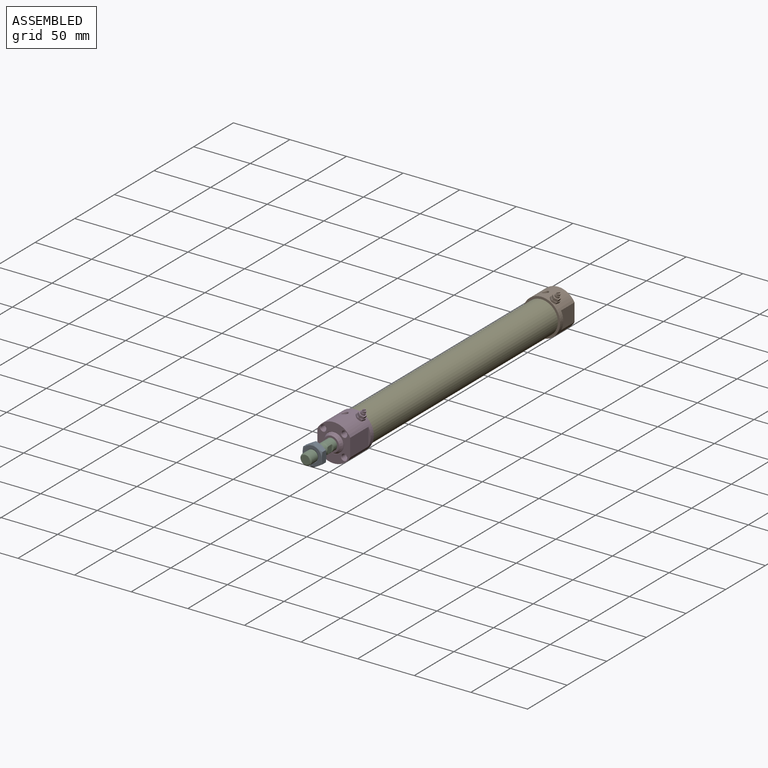
[diagram: assembled view]
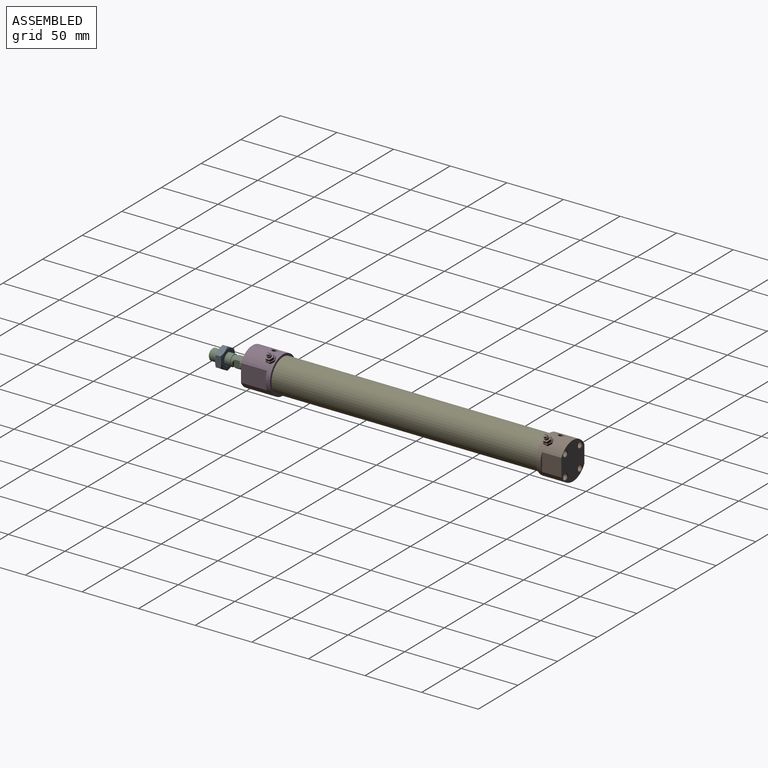
[diagram: assembled view, second angle]
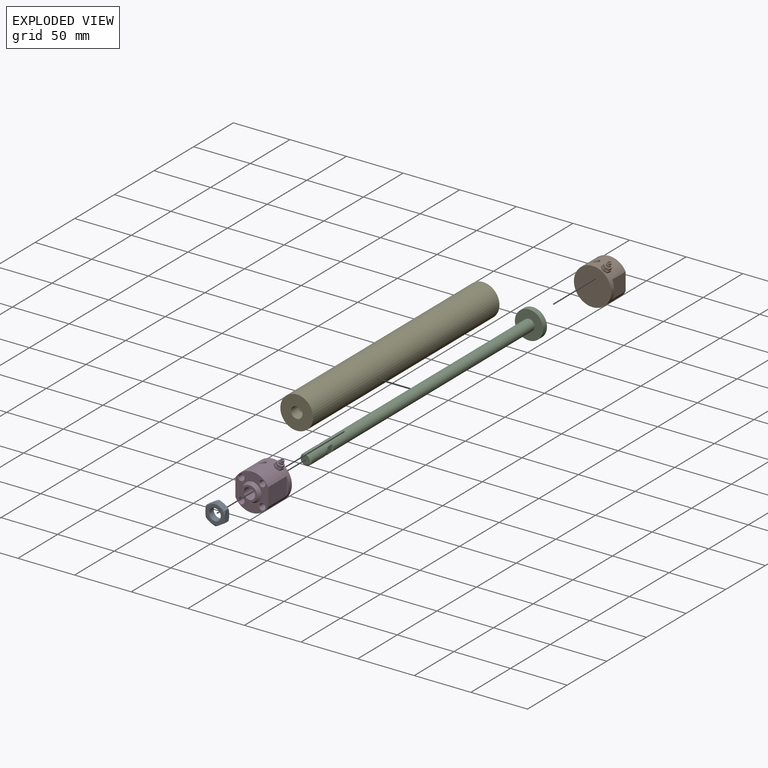
[diagram: exploded view]
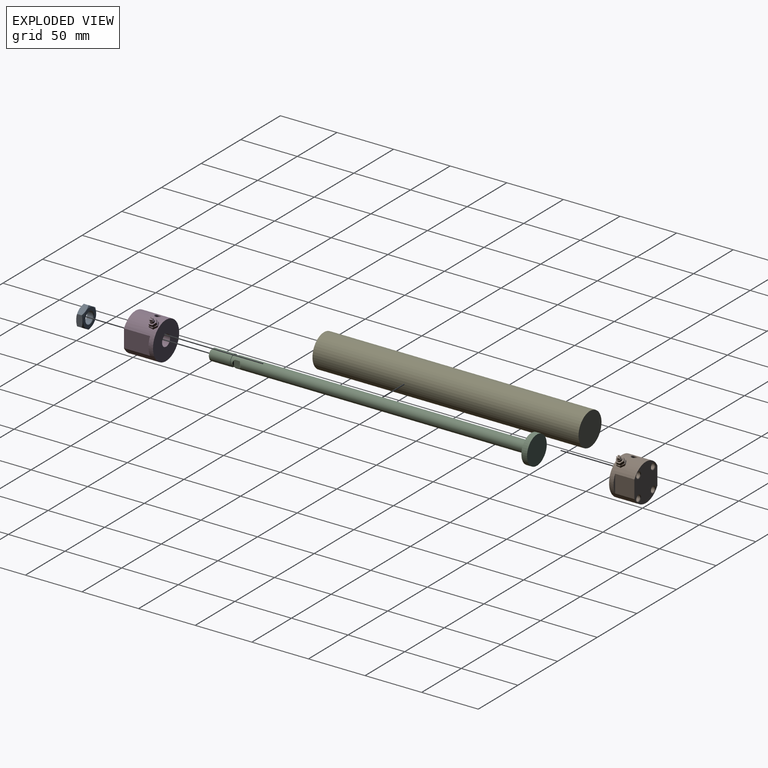
[diagram: exploded view, second angle]
ASSEMBLY  parts=5 mates=3
PART A: 13 faces, bbox 19.6x6x19.6 mm
  f0: plane 8.5x5.72mm, normal (0.5,0,-0.87), area 50.9mm2, adj f1,f5,f11,f12
  f1: plane 9.82x5.72mm, normal (1,0,0), area 50.9mm2, adj f0,f2,f11,f12
  f2: plane 8.51x5.72mm, normal (0.5,0,0.87), area 50.9mm2, adj f1,f3,f11,f12
  f3: plane 8.5x5.72mm, normal (-0.5,0,0.87), area 50.9mm2, adj f2,f4,f11,f12
  f4: plane 9.82x5.72mm, normal (-1,0,0), area 50.9mm2, adj f3,f5,f11,f12
  f5: plane 8.51x5.72mm, normal (-0.5,0,-0.87), area 50.9mm2, adj f0,f4,f11,f12
  f6: plane 16.5x16.5mm, normal (0,1,0), area 126mm2, adj f9,f12
  f7: plane 16.5x16.5mm, normal (0,-1,0), area 118.8mm2, adj f10,f11
  f8: cylinder r=5mm len=10mm, axis (0,1,0), area 163.7mm2, adj f9,f10
  f9: cone r=5.29mm half-angle=30deg, axis (0,1,0), area 18.7mm2, adj f6,f8
  f10: cone r=5mm half-angle=60deg, axis (0,-1,0), area 19mm2, adj f7,f8
  f11: cone r=8.25mm half-angle=60deg, axis (0,1,0), area 42.1mm2, adj f0,f1,f2,f3,f4,f5,f7
  f12: cone r=9.81mm half-angle=60deg, axis (0,-1,0), area 42.1mm2, adj f0,f1,f2,f3,f4,f5,f6
PART B: 48 faces, bbox 33x21x38.1 mm
  f0: plane 2.86x1.43mm, normal (0.5,0,0.87), area 2.4mm2, adj f26,f28
  f1: plane 4x3.46mm, normal (0.5,0,0.87), area 4.5mm2, adj f25,f26
  f2: plane 6.9x5.23mm, normal (0.5,0,0.87), area 18.4mm2, adj f19,f20,f21,f22,f23,f24,f25
  f3: plane 7.91x6.46mm, normal (0.5,0,0.87), area 10.6mm2, adj f13,f14,f15,f16,f17,f18,f19,f20
  f4: plane 8.1x7.02mm, normal (0.5,0,0.87), area 10mm2, adj f12,f13,f14,f15,f16,f17,f18
  f5: cylinder r=16.5mm len=33mm, axis (0,-1,0), area 1540.8mm2, adj f6,f7,f8,f9,f10,f11,f12,f47
  f6: plane 33x29mm, normal (0,1,0), area 707.1mm2, adj f5,f9,f11,f39,f40,f41,f42
  f7: plane 33x33mm, normal (0,-1,0), area 855.3mm2, adj f5
  f8: plane 15.75x2mm, normal (0,1,0), area 21.3mm2, adj f5,f9
  f9: plane 17x15.75mm, normal (-1,0,0), area 267.7mm2, adj f5,f6,f8
  f10: plane 15.75x2mm, normal (0,1,0), area 21.3mm2, adj f5,f11
  f11: plane 17x15.75mm, normal (1,0,0), area 267.7mm2, adj f5,f6,f10
  f12: cylinder r=4.05mm len=8.1mm, axis (0.5,0,0.87), area 7.6mm2, adj f4,f5
  f13: plane 4.18x3.51mm, normal (-0.31,0.93,0.18), area 7.6mm2, adj f3,f4,f14,f18
  f14: plane 3.95x1.95mm, normal (-0.86,0.15,0.49), area 7.6mm2, adj f3,f4,f13,f15
  f15: plane 3.65x3.2mm, normal (-0.54,-0.78,0.31), area 7.6mm2, adj f3,f4,f14,f16
  f16: plane 4.18x3.51mm, normal (0.31,-0.93,-0.18), area 7.6mm2, adj f3,f4,f15,f17
  f17: plane 3.95x1.95mm, normal (0.86,-0.15,-0.49), area 7.6mm2, adj f3,f4,f16,f18
  f18: plane 3.65x3.2mm, normal (0.54,0.78,-0.31), area 7.6mm2, adj f3,f4,f13,f17
  f19: plane 3.45x2.11mm, normal (0.87,0.02,-0.5), area 8.3mm2, adj f2,f3,f20,f24
  f20: plane 3.82x3.59mm, normal (0.42,0.88,-0.24), area 8.3mm2, adj f2,f3,f19,f21
  f21: plane 3.76x3.56mm, normal (-0.45,0.86,0.26), area 8.3mm2, adj f2,f3,f20,f22
  f22: plane 3.45x2.11mm, normal (-0.87,-0.02,0.5), area 8.3mm2, adj f2,f3,f21,f23
  f23: plane 3.82x3.59mm, normal (-0.42,-0.88,0.24), area 8.3mm2, adj f2,f3,f22,f24
  f24: plane 3.76x3.56mm, normal (0.45,-0.86,-0.26), area 8.3mm2, adj f2,f3,f19,f23
  f25: cylinder r=2mm len=4.34mm, axis (-0.5,0,-0.87), area 22mm2, adj f1,f2
  f26: cylinder r=1.6mm len=3.77mm, axis (-0.5,0,-0.87), area 18.1mm2, adj f0,f1,f27,f28,f29,f30
  f27: plane 2.86x1.43mm, normal (0.5,0,0.87), area 2.4mm2, adj f26,f29
  f28: plane 2.86x1.4mm, normal (0.81,-0.34,-0.47), area 3mm2, adj f0,f26,f30
  f29: plane 2.86x1.4mm, normal (-0.81,0.34,0.47), area 3mm2, adj f26,f27,f30
  f30: plane 3.2x1.71mm, normal (0.5,0,0.87), area 3.1mm2, adj f26,f28,f29
  f31: cylinder r=2.5mm len=7.6mm, axis (0,1,0), area 119.4mm2, adj f32,f39
  f32: plane 5x5mm, normal (0,1,0), area 19.6mm2, adj f31
  f33: cylinder r=2.5mm len=7.6mm, axis (0,1,0), area 119.4mm2, adj f34,f42
  f34: plane 5x5mm, normal (0,1,0), area 19.6mm2, adj f33
  f35: cylinder r=2.5mm len=7.6mm, axis (0,1,0), area 119.4mm2, adj f36,f41
  f36: plane 5x5mm, normal (0,1,0), area 19.6mm2, adj f35
  f37: cylinder r=2.5mm len=7.6mm, axis (0,1,0), area 119.4mm2, adj f38,f40
  f38: plane 5x5mm, normal (0,1,0), area 19.6mm2, adj f37
  f39: cone r=2.5mm half-angle=45deg, axis (0,1,0), area 9.6mm2, adj f6,f31
  f40: cone r=2.5mm half-angle=45deg, axis (0,1,0), area 9.6mm2, adj f6,f37
  f41: cone r=2.5mm half-angle=45deg, axis (0,1,0), area 9.6mm2, adj f6,f35
  f42: cone r=2.5mm half-angle=45deg, axis (0,1,0), area 9.6mm2, adj f6,f33
  f43: cylinder r=2.5mm len=10.04mm, axis (-0.17,0,0.98), area 146.2mm2, adj f46,f47
  f44: plane 4.2x4.14mm, normal (-0.17,0,0.98), area 13.9mm2, adj f45
  f45: cylinder r=2.1mm len=4.55mm, axis (-0.17,0,0.98), area 31.7mm2, adj f44,f46
  f46: plane 5x4.92mm, normal (-0.17,0,0.98), area 5.8mm2, adj f43,f45
  f47: bspline ~5.76x5.7mm, area 9.9mm2, adj f5,f43
PART C: 17 faces, bbox 25x287.1x25 mm
  f0: cone r=4.55mm half-angle=30deg, axis (0,1,0), area 8.6mm2, adj f1,f6,f12,f15
  f1: cylinder r=5mm len=259.22mm, axis (0,1,0), area 8074.4mm2, adj f0,f2,f5,f11,f12,f14,f15
  f2: plane 24.9x24.9mm, normal (0,-1,0), area 408.4mm2, adj f1,f3
  f3: cylinder r=12.45mm len=24.9mm, axis (0,1,0), area 391.1mm2, adj f2,f4
  f4: plane 24.9x24.9mm, normal (0,1,0), area 487mm2, adj f3
  f5: cone r=4.55mm half-angle=30deg, axis (0,1,0), area 8.6mm2, adj f1,f6,f12,f15
  f6: cylinder r=4.55mm len=9.1mm, axis (0,1,0), area 68.2mm2, adj f0,f5,f7,f13,f16
  f7: plane 10x10mm, normal (0,1,0), area 13.5mm2, adj f6,f9
  f8: plane 8x8mm, normal (0,-1,0), area 50.3mm2, adj f10
  f9: cylinder r=5mm len=18.5mm, axis (0,1,0), area 581.2mm2, adj f7,f10
  f10: cone r=4mm half-angle=45deg, axis (0,1,0), area 40mm2, adj f8,f9
  f11: plane 6x1mm, normal (0.71,-0.71,0), area 5.8mm2, adj f1,f12
  f12: plane 6.06x5.56mm, normal (1,0,0), area 32.4mm2, adj f0,f1,f5,f11,f13
  f13: plane 4.34x0.55mm, normal (0.71,0.71,0), area 2.3mm2, adj f6,f12
  f14: plane 6x1mm, normal (-0.71,-0.71,0), area 5.8mm2, adj f1,f15
  f15: plane 6.06x5.56mm, normal (-1,0,0), area 32.4mm2, adj f0,f1,f5,f14,f16
  f16: plane 4.34x0.55mm, normal (-0.71,0.71,0), area 2.3mm2, adj f6,f15
PART D: 52 faces, bbox 33x30x38.1 mm
  f0: plane 2.86x1.43mm, normal (0.5,0,0.87), area 2.4mm2, adj f26,f28
  f1: plane 4x3.46mm, normal (0.5,0,0.87), area 4.5mm2, adj f25,f26
  f2: plane 6.9x5.23mm, normal (0.5,0,0.87), area 18.4mm2, adj f19,f20,f21,f22,f23,f24,f25
  f3: plane 7.91x6.46mm, normal (0.5,0,0.87), area 10.6mm2, adj f13,f14,f15,f16,f17,f18,f19,f20
  f4: plane 8.1x7.02mm, normal (0.5,0,0.87), area 10mm2, adj f12,f13,f14,f15,f16,f17,f18
  f5: cylinder r=16.5mm len=33mm, axis (0,1,0), area 1965.8mm2, adj f6,f7,f8,f9,f10,f11,f12,f51
  f6: plane 33x29mm, normal (0,-1,0), area 466.6mm2, adj f5,f9,f11,f31,f41,f42,f43,f44
  f7: plane 33x33mm, normal (0,1,0), area 775.2mm2, adj f5,f47
  f8: plane 15.75x2mm, normal (0,-1,0), area 21.3mm2, adj f5,f9
  f9: plane 23x15.75mm, normal (1,0,0), area 362.2mm2, adj f5,f6,f8
  f10: plane 15.75x2mm, normal (0,-1,0), area 21.3mm2, adj f5,f11
  f11: plane 23x15.75mm, normal (-1,0,0), area 362.2mm2, adj f5,f6,f10
  f12: cylinder r=4.05mm len=8.1mm, axis (0.5,0,0.87), area 7.6mm2, adj f4,f5
  f13: plane 4.18x3.51mm, normal (0.31,-0.93,-0.18), area 7.6mm2, adj f3,f4,f14,f18
  f14: plane 3.95x1.95mm, normal (0.86,-0.15,-0.49), area 7.6mm2, adj f3,f4,f13,f15
  f15: plane 3.65x3.2mm, normal (0.54,0.78,-0.31), area 7.6mm2, adj f3,f4,f14,f16
  f16: plane 4.18x3.51mm, normal (-0.31,0.93,0.18), area 7.6mm2, adj f3,f4,f15,f17
  f17: plane 3.95x1.95mm, normal (-0.86,0.15,0.49), area 7.6mm2, adj f3,f4,f16,f18
  f18: plane 3.65x3.2mm, normal (-0.54,-0.78,0.31), area 7.6mm2, adj f3,f4,f13,f17
  f19: plane 3.45x2.11mm, normal (-0.87,-0.02,0.5), area 8.3mm2, adj f2,f3,f20,f24
  f20: plane 3.82x3.59mm, normal (-0.42,-0.88,0.24), area 8.3mm2, adj f2,f3,f19,f21
  f21: plane 3.76x3.56mm, normal (0.45,-0.86,-0.26), area 8.3mm2, adj f2,f3,f20,f22
  f22: plane 3.45x2.11mm, normal (0.87,0.02,-0.5), area 8.3mm2, adj f2,f3,f21,f23
  f23: plane 3.82x3.59mm, normal (0.42,0.88,-0.24), area 8.3mm2, adj f2,f3,f22,f24
  f24: plane 3.76x3.56mm, normal (-0.45,0.86,0.26), area 8.3mm2, adj f2,f3,f19,f23
  f25: cylinder r=2mm len=4.34mm, axis (-0.5,0,-0.87), area 22mm2, adj f1,f2
  f26: cylinder r=1.6mm len=3.77mm, axis (-0.5,0,-0.87), area 18.1mm2, adj f0,f1,f27,f28,f29,f30
  f27: plane 2.86x1.43mm, normal (0.5,0,0.87), area 2.4mm2, adj f26,f29
  f28: plane 2.86x1.4mm, normal (-0.81,0.34,0.47), area 3mm2, adj f0,f26,f30
  f29: plane 2.86x1.4mm, normal (0.81,-0.34,-0.47), area 3mm2, adj f26,f27,f30
  f30: plane 3.2x1.71mm, normal (0.5,0,0.87), area 3.1mm2, adj f26,f28,f29
  f31: cone r=8.5mm half-angle=45deg, axis (0,-1,0), area 19.2mm2, adj f6,f32
  f32: cylinder r=8.5mm len=17mm, axis (0,1,0), area 13.4mm2, adj f31,f45
  f33: cylinder r=2.5mm len=7.6mm, axis (0,-1,0), area 119.4mm2, adj f34,f41
  f34: plane 5x5mm, normal (0,-1,0), area 19.6mm2, adj f33
  f35: cylinder r=2.5mm len=7.6mm, axis (0,-1,0), area 119.4mm2, adj f36,f44
  f36: plane 5x5mm, normal (0,-1,0), area 19.6mm2, adj f35
  f37: cylinder r=2.5mm len=7.6mm, axis (0,-1,0), area 119.4mm2, adj f38,f43
  f38: plane 5x5mm, normal (0,-1,0), area 19.6mm2, adj f37
  f39: cylinder r=2.5mm len=7.6mm, axis (0,-1,0), area 119.4mm2, adj f40,f42
  f40: plane 5x5mm, normal (0,-1,0), area 19.6mm2, adj f39
  f41: cone r=2.5mm half-angle=45deg, axis (0,-1,0), area 9.6mm2, adj f6,f33
  f42: cone r=2.5mm half-angle=45deg, axis (0,-1,0), area 9.6mm2, adj f6,f39
  f43: cone r=2.5mm half-angle=45deg, axis (0,-1,0), area 9.6mm2, adj f6,f37
  f44: cone r=2.5mm half-angle=45deg, axis (0,-1,0), area 9.6mm2, adj f6,f35
  f45: cone r=8.5mm half-angle=30deg, axis (0,1,0), area 166.2mm2, adj f32,f46
  f46: plane 13.54x13.54mm, normal (0,-1,0), area 63.8mm2, adj f45,f47
  f47: cylinder r=5.05mm len=30mm, axis (0,-1,0), area 937.7mm2, adj f7,f46,f48
  f48: cylinder r=2.1mm len=4.47mm, axis (-0.17,0,0.98), area 25.2mm2, adj f47,f50
  f49: cylinder r=2.5mm len=10.04mm, axis (-0.17,0,0.98), area 146.2mm2, adj f50,f51
  f50: plane 5x4.92mm, normal (-0.17,0,0.98), area 5.8mm2, adj f48,f49
  f51: bspline ~5.77x5.7mm, area 9.9mm2, adj f5,f49
PART E: 7 faces, bbox 29x235x29 mm
  f0: plane 29x29mm, normal (0,-1,0), area 580.4mm2, adj f1,f3
  f1: cylinder r=14.5mm len=235mm, axis (0,1,0), area 21410mm2, adj f0,f2
  f2: plane 29x29mm, normal (0,1,0), area 660.5mm2, adj f1
  f3: cylinder r=5.05mm len=15mm, axis (0,1,0), area 476mm2, adj f0,f4
  f4: plane 25.1x25.1mm, normal (0,1,0), area 414.7mm2, adj f3,f5
  f5: cylinder r=12.55mm len=205mm, axis (0,1,0), area 16165.1mm2, adj f4,f6
  f6: plane 25.1x25.1mm, normal (0,-1,0), area 494.8mm2, adj f5
PLACE A t=(0,7.72,0)mm
PLACE B at identity fixed
PLACE C t=(0,4.22,0)mm
PLACE D at identity
PLACE E at identity
MATE fastened A.f8 <-> C.f10  axis (0,1,0) through (0,-165.78,0)mm
MATE fastened B.f5 <-> E.f1  axis (0,-1,0) through (0,117.5,0)mm
MATE fastened E.f1 <-> D.f5  axis (0,-1,0) through (0,-117.5,0)mm
